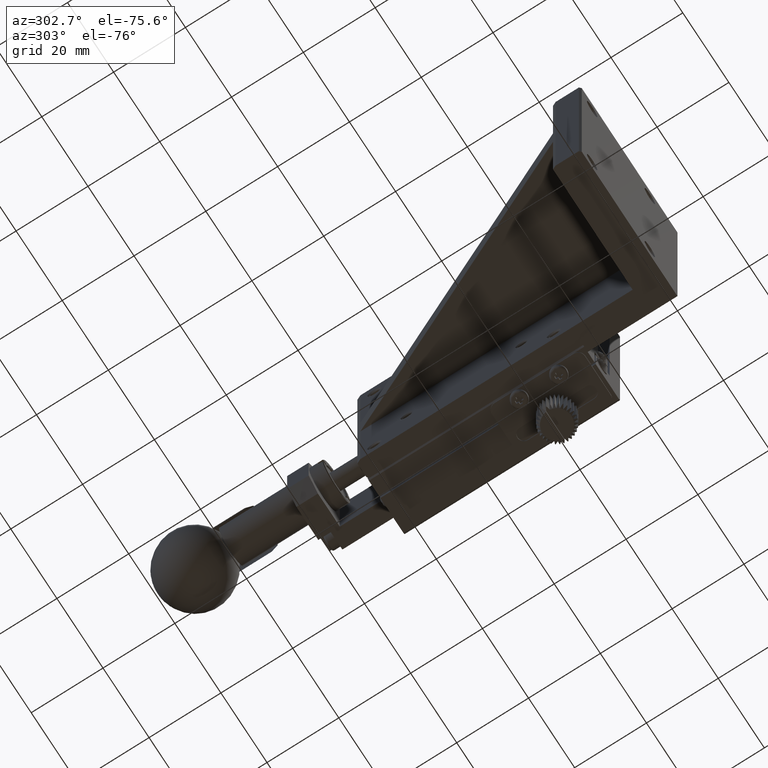
[diagram: clean part render]
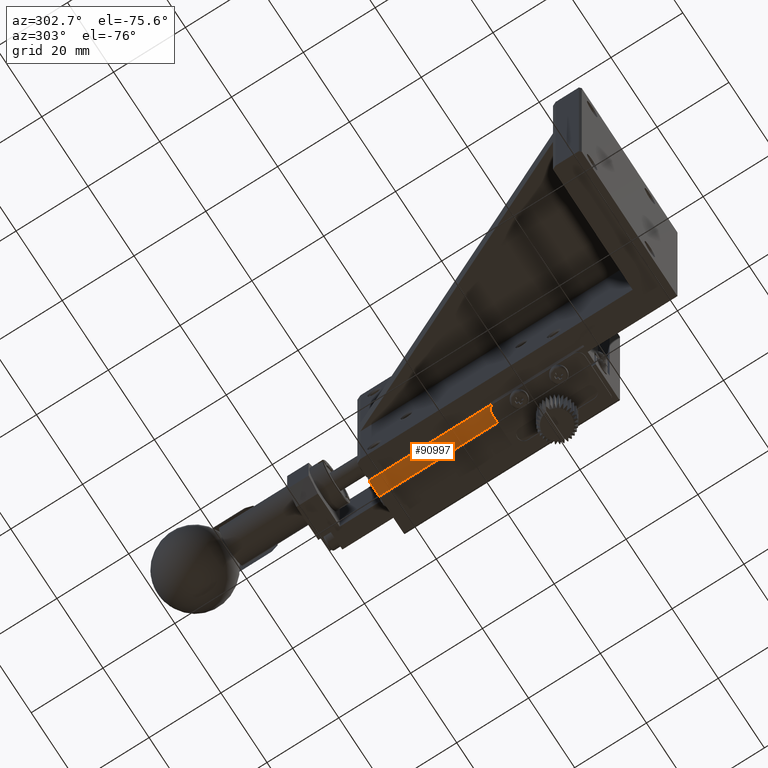
[diagram: same view with one face highlighted and labeled with its STEP entity id]
A machine part, auxiliary view. The second image highlights one B-rep face of the part: STEP entity #90997.
In plain terms, the highlighted planar face has unit normal (0, 0, 1).
Its self-contained STEP definition (entity closure, byte-faithful):
#5651 = FACE_OUTER_BOUND ( 'NONE', #62986, .T. ) ;
#6918 = VECTOR ( 'NONE', #53672, 1000.000000000000000 ) ;
#7497 = VECTOR ( 'NONE', #31786, 1000.000000000000000 ) ;
#10114 = CARTESIAN_POINT ( 'NONE',  ( 3.000000000000010658, 84.99999999999998579, -60.00000000000000000 ) ) ;
#10239 = CARTESIAN_POINT ( 'NONE',  ( -1.499999999999992673, 84.99999999999998579, -60.00000000000000000 ) ) ;
#10726 = VERTEX_POINT ( 'NONE', #34640 ) ;
#12320 = AXIS2_PLACEMENT_3D ( 'NONE', #34357, #19046, #26711 ) ;
#14101 = LINE ( 'NONE', #65372, #42850 ) ;
#19046 = DIRECTION ( 'NONE',  ( 0.000000000000000000, 0.000000000000000000, 1.000000000000000000 ) ) ;
#19110 = VERTEX_POINT ( 'NONE', #91530 ) ;
#20665 = EDGE_CURVE ( 'NONE', #51803, #33592, #47435, .T. ) ;
#21541 = EDGE_CURVE ( 'NONE', #51803, #10726, #74776, .T. ) ;
#25528 = ORIENTED_EDGE ( 'NONE', *, *, #31132, .F. ) ;
#25934 = AXIS2_PLACEMENT_3D ( 'NONE', #92238, #55836, #26625 ) ;
#26625 = DIRECTION ( 'NONE',  ( 1.000000000000000000, 0.000000000000000000, 0.000000000000000000 ) ) ;
#26711 = DIRECTION ( 'NONE',  ( 1.000000000000000000, 0.000000000000000000, 0.000000000000000000 ) ) ;
#31132 = EDGE_CURVE ( 'NONE', #10726, #80074, #38469, .T. ) ;
#31786 = DIRECTION ( 'NONE',  ( -0.000000000000000000, -1.000000000000000000, -0.000000000000000000 ) ) ;
#33592 = VERTEX_POINT ( 'NONE', #79304 ) ;
#34357 = CARTESIAN_POINT ( 'NONE',  ( 3.000000000000009770, 84.99999999999998579, -60.00000000000000000 ) ) ;
#34430 = VECTOR ( 'NONE', #65757, 1000.000000000000000 ) ;
#34640 = CARTESIAN_POINT ( 'NONE',  ( -1.499999999999992673, 84.99999999999998579, -60.00000000000000000 ) ) ;
#35099 = CIRCLE ( 'NONE', #25934, 2.000000000000000000 ) ;
#37010 = ORIENTED_EDGE ( 'NONE', *, *, #90181, .F. ) ;
#37223 = ORIENTED_EDGE ( 'NONE', *, *, #20665, .T. ) ;
#37652 = CARTESIAN_POINT ( 'NONE',  ( 3.000000000000010658, 84.99999999999998579, -60.00000000000000000 ) ) ;
#37877 = CARTESIAN_POINT ( 'NONE',  ( -2.000000000000000000, 84.99999999999998579, -60.00000000000000000 ) ) ;
#38469 = LINE ( 'NONE', #10239, #7497 ) ;
#38968 = EDGE_CURVE ( 'NONE', #80074, #19110, #35099, .T. ) ;
#41397 = DIRECTION ( 'NONE',  ( 1.000000000000000000, 0.000000000000000000, 0.000000000000000000 ) ) ;
#42850 = VECTOR ( 'NONE', #41397, 1000.000000000000000 ) ;
#42907 = ORIENTED_EDGE ( 'NONE', *, *, #21541, .F. ) ;
#47435 = LINE ( 'NONE', #10114, #6918 ) ;
#51803 = VERTEX_POINT ( 'NONE', #37652 ) ;
#53672 = DIRECTION ( 'NONE',  ( -0.000000000000000000, -1.000000000000000000, -0.000000000000000000 ) ) ;
#55836 = DIRECTION ( 'NONE',  ( -0.000000000000000000, -0.000000000000000000, -1.000000000000000000 ) ) ;
#59655 = CARTESIAN_POINT ( 'NONE',  ( -1.499999821556001756, 49.99999964260200613, -60.00000000000000000 ) ) ;
#62986 = EDGE_LOOP ( 'NONE', ( #65565, #25528, #42907, #37223, #37010 ) ) ;
#65372 = CARTESIAN_POINT ( 'NONE',  ( 3.000000000000009770, 51.99999964260199903, -60.00000000000000000 ) ) ;
#65565 = ORIENTED_EDGE ( 'NONE', *, *, #38968, .F. ) ;
#65757 = DIRECTION ( 'NONE',  ( -1.000000000000000000, -0.000000000000000000, -0.000000000000000000 ) ) ;
#74776 = LINE ( 'NONE', #37877, #34430 ) ;
#79304 = CARTESIAN_POINT ( 'NONE',  ( 3.000000000000010658, 51.99999964260199903, -60.00000000000000000 ) ) ;
#80074 = VERTEX_POINT ( 'NONE', #59655 ) ;
#84666 = PLANE ( 'NONE',  #12320 ) ;
#90181 = EDGE_CURVE ( 'NONE', #19110, #33592, #14101, .T. ) ;
#90997 = ADVANCED_FACE ( 'NONE', ( #5651 ), #84666, .F. ) ;
#91530 = CARTESIAN_POINT ( 'NONE',  ( 0.5000003568879948235, 51.99999964260199903, -60.00000000000000000 ) ) ;
#92238 = CARTESIAN_POINT ( 'NONE',  ( 0.5000003568879896054, 49.99999964260200613, -60.00000000000000000 ) ) ;